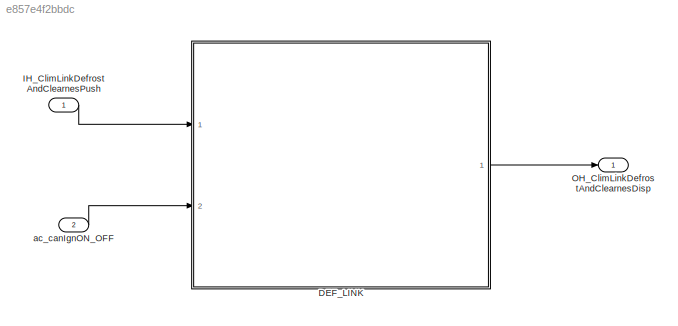
MODEL slx_e857e4f2bbdc
KIND model
CONFIG AbsTol = auto
CONFIG EnableMultiTasking = off
CONFIG FixedStep = auto
CONFIG MaxStep = auto
CONFIG MinStep = auto
CONFIG RelTol = 1e-3
CONFIG SampleTimeConstraint = Unconstrained
CONFIG Solver = VariableStepAuto
CONFIG SolverName = VariableStepAuto
CONFIG StartTime = 0.0
CONFIG StopTime = 10.0
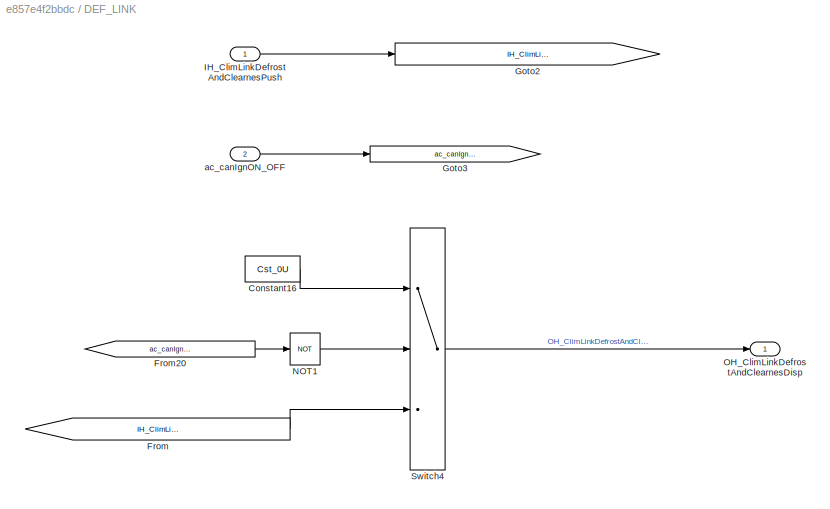
BLOCK [SubSystem] DEF_LINK
  Ports = [2, 1]
  RequestExecContextInheritance = off
BLOCK [Constant] DEF_LINK/Constant16
  Value = Cst_0U
BLOCK [From] DEF_LINK/From
  GotoTag = IH_ClimLinkDefrostAndClearnesPush
BLOCK [From] DEF_LINK/From20
  GotoTag = ac_canIgnON_OFF
BLOCK [Goto] DEF_LINK/Goto2
  GotoTag = IH_ClimLinkDefrostAndClearnesPush
BLOCK [Goto] DEF_LINK/Goto3
  GotoTag = ac_canIgnON_OFF
BLOCK [Inport] DEF_LINK/IH_ClimLinkDefrostAndClearnesPush
  IconDisplay = Port number
BLOCK [Logic] DEF_LINK/NOT1
  AllPortsSameDT = off
  Operator = NOT
  OutDataTypeStr = boolean
  Ports = [1, 1]
BLOCK [Outport] DEF_LINK/OH_ClimLinkDefrostAndClearnesDisp
  IconDisplay = Port number
BLOCK [Switch] DEF_LINK/Switch4
  Criteria = u2 ~= 0
  InputSameDT = off
  SaturateOnIntegerOverflow = off
BLOCK [Inport] DEF_LINK/ac_canIgnON_OFF
  IconDisplay = Port number
  OutDataTypeStr = boolean
  Port = 2
BLOCK [Inport] IH_ClimLinkDefrostAndClearnesPush
  IconDisplay = Port number
BLOCK [Outport] OH_ClimLinkDefrostAndClearnesDisp
  IconDisplay = Port number
BLOCK [Inport] ac_canIgnON_OFF
  IconDisplay = Port number
  OutDataTypeStr = boolean
  Port = 2
LINE DEF_LINK/Constant16:1 -> DEF_LINK/Switch4:1
LINE DEF_LINK/From20:1 -> DEF_LINK/NOT1:1
LINE DEF_LINK/From:1 -> DEF_LINK/Switch4:3
LINE DEF_LINK/IH_ClimLinkDefrostAndClearnesPush:1 -> DEF_LINK/Goto2:1
LINE DEF_LINK/NOT1:1 -> DEF_LINK/Switch4:2
LINE DEF_LINK/Switch4:1 -> DEF_LINK/OH_ClimLinkDefrostAndClearnesDisp:1
LINE DEF_LINK/ac_canIgnON_OFF:1 -> DEF_LINK/Goto3:1
LINE DEF_LINK:1 -> OH_ClimLinkDefrostAndClearnesDisp:1
LINE IH_ClimLinkDefrostAndClearnesPush:1 -> DEF_LINK:1
LINE ac_canIgnON_OFF:1 -> DEF_LINK:2
